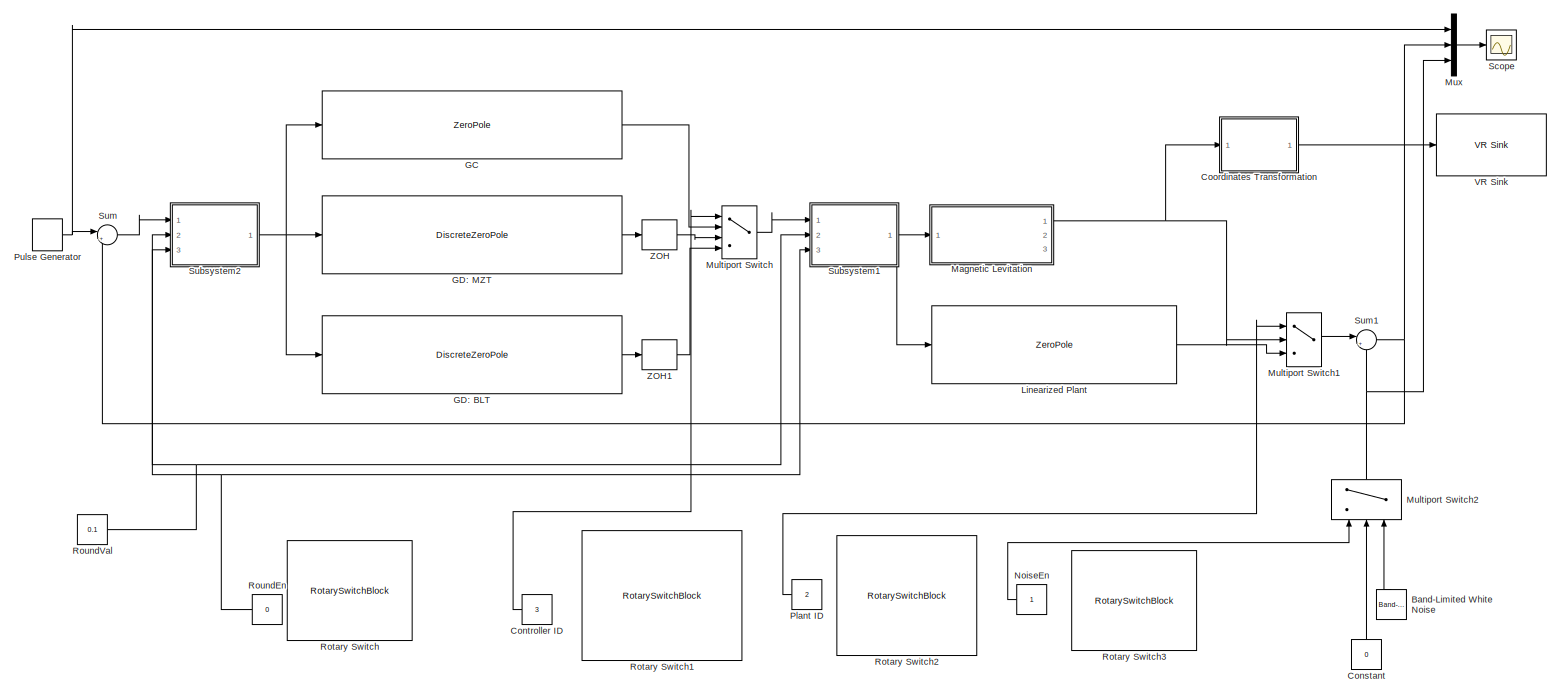
[diagram: root canvas - part 1/1, most of the canvas]
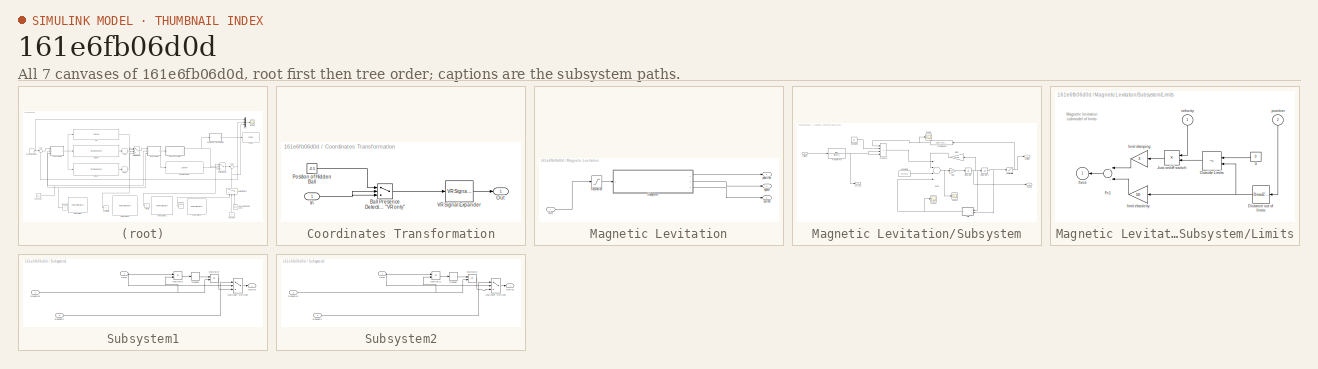
[diagram: thumbnail index - all 7 canvases of the model, root first then tree order]
MODEL slx_161e6fb06d0d
KIND model
CONFIG AbsTol = 1e-5
CONFIG EnableMultiTasking = off
CONFIG FixedStep = 1e-3
CONFIG MaxStep = 0.001
CONFIG MinStep = auto
CONFIG RelTol = 1e-3
CONFIG SampleTimeConstraint = Unconstrained
CONFIG Solver = ode5
CONFIG SolverName = ode5
CONFIG StartTime = 0.0
CONFIG StopTime = 5
WORKSPACE source: MATLAB code (in-file)
WORKSPACE Ts = 1e-3  (= 0.001)
BLOCK [Reference] Band-Limited White Noise  REF=simulink/Sources/Band-Limited
White Noise
  Ports = [0, 1]
  SourceBlock = simulink/Sources/Band-Limited\nWhite Noise
  SourceProductBaseCode = SL
  SourceProductName = Simulink
  SourceType = Band-Limited White Noise.
BLOCK [Constant] Constant
  Value = 0
BLOCK [Constant] Controller ID
  Value = 3
BLOCK [SubSystem] Coordinates Transformation
  Permissions = ReadOnly
  Ports = [1, 1]
  RequestExecContextInheritance = off
BLOCK [Switch] Coordinates Transformation/Ball Presence Detection Value > Threshold = Ball Not Present 1 for "VR only"
  SaturateOnIntegerOverflow = off
  Threshold = 1
BLOCK [Inport] Coordinates Transformation/In
  IconDisplay = Port number
BLOCK [Outport] Coordinates Transformation/Out
  IconDisplay = Port number
BLOCK [Constant] Coordinates Transformation/Position of Hidden Ball
  Value = -0.5
BLOCK [Reference] Coordinates Transformation/VR Signal Expander  REF=vrlib/VR Signal Expander
  Ports = [1, 1]
  SourceBlock = vrlib/VR Signal Expander
  SourceProductBaseCode = VR
  SourceProductName = Simulink 3D Animation
  SourceType = VR Signal Expander
BLOCK [ZeroPole] GC
  Gain = 19.0620
  Poles = [0, -10.2083]
  Zeros = [3.7887, -3.9791]
BLOCK [DiscreteZeroPole] GD: BLT
  Gain = 19.0620 * A
  Poles = [1, -C3]
  SampleTime = T
  Zeros = [-C1, -C2]
BLOCK [DiscreteZeroPole] GD: MZT
  Gain = K_M
  Poles = [1, exp(-10.2083*T)]
  SampleTime = T
  Zeros = [exp(3.7887*T), exp(-3.9791*T)]
BLOCK [ZeroPole] Linearized Plant
  Gain = 656.3
  Poles = [-250, -3.9791, +3.7887]
  Zeros = []
BLOCK [SubSystem] Magnetic Levitation
  Ports = [1, 3]
  RequestExecContextInheritance = off
BLOCK [Saturate] Magnetic Levitation/Saturation
  InputPortMap = u0
  LowerLimit = 0
  Ports = [1, 1]
  UpperLimit = 10
  ZeroCross = off
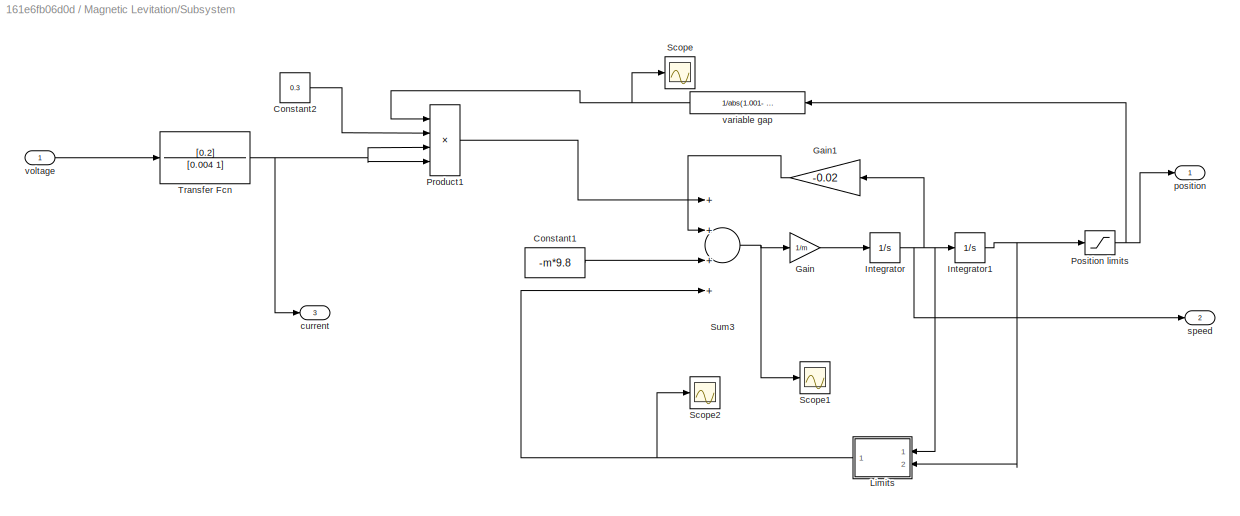
BLOCK [SubSystem] Magnetic Levitation/Subsystem
  Ports = [1, 3]
  RequestExecContextInheritance = off
BLOCK [Constant] Magnetic Levitation/Subsystem/Constant1
  Value = -m*9.8
BLOCK [Constant] Magnetic Levitation/Subsystem/Constant2
  Value = 0.3
BLOCK [Gain] Magnetic Levitation/Subsystem/Gain
  Gain = 1/m
  OutDataTypeStr = Inherit: Inherit via internal rule
  ParamDataTypeStr = Inherit: Inherit via internal rule
  SaturateOnIntegerOverflow = off
BLOCK [Gain] Magnetic Levitation/Subsystem/Gain1
  Gain = -0.02
  OutDataTypeStr = Inherit: Inherit via internal rule
  ParamDataTypeStr = Inherit: Inherit via internal rule
  SaturateOnIntegerOverflow = off
BLOCK [Integrator] Magnetic Levitation/Subsystem/Integrator
  Ports = [1, 1]
BLOCK [Integrator] Magnetic Levitation/Subsystem/Integrator1
  LimitOutput = on
  LowerSaturationLimit = 0
  Ports = [1, 1]
  UpperSaturationLimit = 1
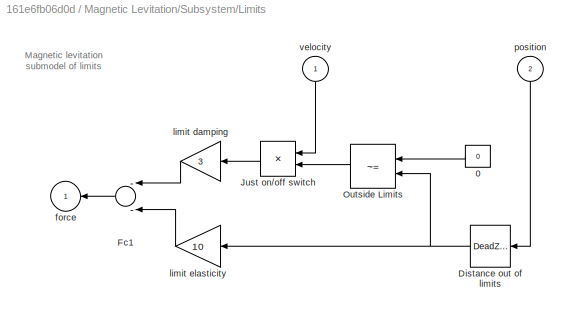
BLOCK [SubSystem] Magnetic Levitation/Subsystem/Limits
  Ports = [2, 1]
  RequestExecContextInheritance = off
  ShowPortLabels = none
BLOCK [Constant] Magnetic Levitation/Subsystem/Limits/0
  Value = 0
BLOCK [DeadZone] Magnetic Levitation/Subsystem/Limits/Distance out of limits
  LowerValue = 0.002
  UpperValue = 1
  ZeroCross = off
BLOCK [Sum] Magnetic Levitation/Subsystem/Limits/Fc1
  Inputs = --
  Ports = [2, 1]
BLOCK [Product] Magnetic Levitation/Subsystem/Limits/Just on//off switch 
  Ports = [2, 1]
  RndMeth = Floor
BLOCK [RelationalOperator] Magnetic Levitation/Subsystem/Limits/Outside Limits
  Operator = ~=
  Ports = [2, 1]
BLOCK [Outport] Magnetic Levitation/Subsystem/Limits/force
  IconDisplay = Port number
BLOCK [Gain] Magnetic Levitation/Subsystem/Limits/limit damping
  Gain = 3
BLOCK [Gain] Magnetic Levitation/Subsystem/Limits/limit elasticity
  Gain = 10
BLOCK [Inport] Magnetic Levitation/Subsystem/Limits/position
  IconDisplay = Port number
  Port = 2
BLOCK [Inport] Magnetic Levitation/Subsystem/Limits/velocity
  IconDisplay = Port number
BLOCK [Saturate] Magnetic Levitation/Subsystem/Position limits
  InputPortMap = u0
  LowerLimit = 0.001
  Ports = [1, 1]
  UpperLimit = 0.998
  ZeroCross = off
BLOCK [Product] Magnetic Levitation/Subsystem/Product1
  InputSameDT = off
  Inputs = 4
  OutDataTypeStr = Inherit: Inherit via internal rule
  Ports = [4, 1]
  RndMeth = Floor
  SaturateOnIntegerOverflow = off
BLOCK [Scope] Magnetic Levitation/Subsystem/Scope
  Floating = off
  NumInputPorts = 1
  Ports = [1]
  ScopeSpecificationString = Simulink.scopes.TimeScopeBlockCfg('CurrentConfiguration', extmgr.ConfigurationSet(extmgr.Configuration('Core','General UI',true),extmgr.Configuration('Core','Source UI',true),extmgr.Configuration('Sources','WiredSimulink',true,'DataLoggingVariableName','ScopeData1'),extmgr.Configuration('Visuals','Time Domain',true,'SerializedDisplays',{struct('MinYLimReal','-40.54054','MaxYLimReal','374.87487','Y...<+1381ch>
BLOCK [Scope] Magnetic Levitation/Subsystem/Scope1
  Floating = off
  NumInputPorts = 1
  Ports = [1]
  ScopeSpecificationString = Simulink.scopes.TimeScopeBlockCfg('CurrentConfiguration', extmgr.ConfigurationSet(extmgr.Configuration('Core','General UI',true),extmgr.Configuration('Core','Source UI',true),extmgr.Configuration('Sources','WiredSimulink',true,'DataLoggingVariableName','ScopeData2'),extmgr.Configuration('Visuals','Time Domain',true,'SerializedDisplays',{struct('MinYLimReal','-21376391083219120442781708779858395089...<+3841ch>
BLOCK [Scope] Magnetic Levitation/Subsystem/Scope2
  Floating = off
  NumInputPorts = 1
  Ports = [1]
  ScopeSpecificationString = Simulink.scopes.TimeScopeBlockCfg('CurrentConfiguration', extmgr.ConfigurationSet(extmgr.Configuration('Core','General UI',true),extmgr.Configuration('Core','Source UI',true),extmgr.Configuration('Sources','WiredSimulink',true,'DataLoggingVariableName','ScopeData3'),extmgr.Configuration('Visuals','Time Domain',true,'SerializedDisplays',{struct('MinYLimReal','-0.1107','MaxYLimReal','1.19629','YLabe...<+1363ch>
BLOCK [Sum] Magnetic Levitation/Subsystem/Sum3
  InputSameDT = off
  Inputs = ++++
  OutDataTypeStr = Inherit: Inherit via internal rule
  Ports = [4, 1]
  SaturateOnIntegerOverflow = off
BLOCK [TransferFcn] Magnetic Levitation/Subsystem/Transfer Fcn
  Denominator = [0.004 1]
  Numerator = [0.2]
BLOCK [Outport] Magnetic Levitation/Subsystem/current
  IconDisplay = Port number
  Port = 3
BLOCK [Outport] Magnetic Levitation/Subsystem/position 
  IconDisplay = Port number
BLOCK [Outport] Magnetic Levitation/Subsystem/speed
  IconDisplay = Port number
  Port = 2
BLOCK [Fcn] Magnetic Levitation/Subsystem/variable gap
  Expr = 1/abs(1.001- u)
BLOCK [Inport] Magnetic Levitation/Subsystem/voltage
  IconDisplay = Port number
BLOCK [Inport] Magnetic Levitation/Vin
  IconDisplay = Port number
BLOCK [Outport] Magnetic Levitation/current
  IconDisplay = Port number
  Port = 3
BLOCK [Outport] Magnetic Levitation/position
  IconDisplay = Port number
BLOCK [Outport] Magnetic Levitation/speed
  IconDisplay = Port number
  Port = 2
BLOCK [MultiPortSwitch] Multiport Switch
  InputSameDT = off
  Ports = [4, 1]
  SaturateOnIntegerOverflow = off
BLOCK [MultiPortSwitch] Multiport Switch1
  InputSameDT = off
  Inputs = 2
  Ports = [3, 1]
  SaturateOnIntegerOverflow = off
BLOCK [MultiPortSwitch] Multiport Switch2
  DataPortOrder = Zero-based contiguous
  InputSameDT = off
  Inputs = 2
  Ports = [3, 1]
  SaturateOnIntegerOverflow = off
  zeroidx = on
BLOCK [Mux] Mux
  DisplayOption = bar
  Inputs = 3
  Ports = [3, 1]
BLOCK [Constant] NoiseEn
BLOCK [Constant] Plant ID
  Value = 2
BLOCK [DiscretePulseGenerator] Pulse Generator
  Amplitude = yd
  Period = 10
  Ports = [0, 1]
  PulseType = Time based
  PulseWidth = 50
BLOCK [RotarySwitchBlock] Rotary Switch
  WebBlockId = 228
BLOCK [RotarySwitchBlock] Rotary Switch1
  WebBlockId = 212
BLOCK [RotarySwitchBlock] Rotary Switch2
  WebBlockId = 211
BLOCK [RotarySwitchBlock] Rotary Switch3
  WebBlockId = 257
BLOCK [Constant] RoundEn
  Value = 0
BLOCK [Constant] RoundVal
  Value = 0.1
BLOCK [Scope] Scope
  ExtModeUploadOption = log
  Floating = off
  NumInputPorts = 1
  Ports = [1]
  ScopeSpecificationString = Simulink.scopes.TimeScopeBlockCfg('CurrentConfiguration', extmgr.ConfigurationSet(extmgr.Configuration('Core','General UI',true),extmgr.Configuration('Core','Source UI',true),extmgr.Configuration('Sources','WiredSimulink',true,'DataLoggingSaveFormat','Structure','DataLoggingMaxPoints','250','SampleTime','0.02','DataLoggingLimitDataPoints',true,'DataLoggingDecimation','1'),extmgr.Configuration('Vis...<+2151ch>
BLOCK [SubSystem] Subsystem1
  Ports = [3, 1]
  RequestExecContextInheritance = off
BLOCK [Inport] Subsystem1/InVal
  IconDisplay = Port number
BLOCK [Product] Subsystem1/Multiply2
  InputSameDT = off
  Inputs = */
  OutDataTypeStr = Inherit: Inherit via internal rule
  Ports = [2, 1]
  RndMeth = Floor
  SaturateOnIntegerOverflow = off
BLOCK [Product] Subsystem1/Multiply3
  InputSameDT = off
  Inputs = **
  OutDataTypeStr = Inherit: Inherit via internal rule
  Ports = [2, 1]
  RndMeth = Floor
  SaturateOnIntegerOverflow = off
BLOCK [MultiPortSwitch] Subsystem1/Multiport Switch2
  DataPortOrder = Zero-based contiguous
  InputSameDT = off
  Inputs = 2
  Ports = [3, 1]
  SaturateOnIntegerOverflow = off
  zeroidx = on
BLOCK [Outport] Subsystem1/OutVal
  IconDisplay = Port number
BLOCK [Rounding] Subsystem1/Round2
  Operator = round
BLOCK [Inport] Subsystem1/RoundEn
  IconDisplay = Port number
  Port = 3
BLOCK [Inport] Subsystem1/RoundVal
  IconDisplay = Port number
  Port = 2
BLOCK [SubSystem] Subsystem2
  Ports = [3, 1]
  RequestExecContextInheritance = off
BLOCK [Inport] Subsystem2/InVal
  IconDisplay = Port number
BLOCK [Product] Subsystem2/Multiply2
  InputSameDT = off
  Inputs = */
  OutDataTypeStr = Inherit: Inherit via internal rule
  Ports = [2, 1]
  RndMeth = Floor
  SaturateOnIntegerOverflow = off
BLOCK [Product] Subsystem2/Multiply3
  InputSameDT = off
  Inputs = **
  OutDataTypeStr = Inherit: Inherit via internal rule
  Ports = [2, 1]
  RndMeth = Floor
  SaturateOnIntegerOverflow = off
BLOCK [MultiPortSwitch] Subsystem2/Multiport Switch2
  DataPortOrder = Zero-based contiguous
  InputSameDT = off
  Inputs = 2
  Ports = [3, 1]
  SaturateOnIntegerOverflow = off
  zeroidx = on
BLOCK [Outport] Subsystem2/OutVal
  IconDisplay = Port number
BLOCK [Rounding] Subsystem2/Round2
  Operator = round
BLOCK [Inport] Subsystem2/RoundEn
  IconDisplay = Port number
  Port = 3
BLOCK [Inport] Subsystem2/RoundVal
  IconDisplay = Port number
  Port = 2
BLOCK [Sum] Sum
  IconShape = round
  Inputs = |+-
  Ports = [2, 1]
BLOCK [Sum] Sum1
  IconShape = round
  InputSameDT = off
  Inputs = |++
  OutDataTypeStr = Inherit: Inherit via internal rule
  Ports = [2, 1]
  SaturateOnIntegerOverflow = off
BLOCK [Reference] VR Sink  REF=vrlib/VR Sink
  InstantiateOnLoad = on
  Ports = [1]
  SourceBlock = vrlib/VR Sink
  SourceProductBaseCode = VR
  SourceProductName = Simulink 3D Animation
  SourceType = Virtual Reality Sink
BLOCK [ZeroOrderHold] ZOH
  SampleTime = T
BLOCK [ZeroOrderHold] ZOH1
  SampleTime = T
ANNOTATION Magnetic Levitation/Subsystem/Limits: Magnetic levitation submodel of limits
LINE Band-Limited White Noise:1 -> Multiport Switch2:3
LINE Constant:1 -> Multiport Switch2:2
LINE Controller ID:1 -> Multiport Switch:1
LINE Coordinates Transformation/Ball Presence Detection Value > Threshold = Ball Not Present 1 for "VR only":1 -> Coordinates Transformation/VR Signal Expander:1
NET Coordinates Transformation/In:1 -> Coordinates Transformation/Ball Presence Detection Value > Threshold = Ball Not Present 1 for "VR only":2, Coordinates Transformation/Ball Presence Detection Value > Threshold = Ball Not Present 1 for "VR only":3
LINE Coordinates Transformation/Position of Hidden Ball:1 -> Coordinates Transformation/Ball Presence Detection Value > Threshold = Ball Not Present 1 for "VR only":1
LINE Coordinates Transformation/VR Signal Expander:1 -> Coordinates Transformation/Out:1
LINE Coordinates Transformation:1 -> VR Sink:1
LINE GC:1 -> Multiport Switch:2
LINE GD: BLT:1 -> ZOH1:1
LINE GD: MZT:1 -> ZOH:1
LINE Linearized Plant:1 -> Multiport Switch1:3
LINE Magnetic Levitation/Saturation:1 -> Magnetic Levitation/Subsystem:1
LINE Magnetic Levitation/Subsystem/Constant1:1 -> Magnetic Levitation/Subsystem/Sum3:3
LINE Magnetic Levitation/Subsystem/Constant2:1 -> Magnetic Levitation/Subsystem/Product1:2
LINE Magnetic Levitation/Subsystem/Gain1:1 -> Magnetic Levitation/Subsystem/Sum3:2
LINE Magnetic Levitation/Subsystem/Gain:1 -> Magnetic Levitation/Subsystem/Integrator:1
NET Magnetic Levitation/Subsystem/Integrator1:1 -> Magnetic Levitation/Subsystem/Limits:2, Magnetic Levitation/Subsystem/Position limits:1
NET Magnetic Levitation/Subsystem/Integrator:1 -> Magnetic Levitation/Subsystem/Gain1:1, Magnetic Levitation/Subsystem/Integrator1:1, Magnetic Levitation/Subsystem/Limits:1, Magnetic Levitation/Subsystem/speed:1
LINE Magnetic Levitation/Subsystem/Limits/0:1 -> Magnetic Levitation/Subsystem/Limits/Outside Limits:1
NET Magnetic Levitation/Subsystem/Limits/Distance out of limits:1 -> Magnetic Levitation/Subsystem/Limits/Outside Limits:2, Magnetic Levitation/Subsystem/Limits/limit elasticity:1
LINE Magnetic Levitation/Subsystem/Limits/Fc1:1 -> Magnetic Levitation/Subsystem/Limits/force:1
LINE Magnetic Levitation/Subsystem/Limits/Just on//off switch :1 -> Magnetic Levitation/Subsystem/Limits/limit damping:1
LINE Magnetic Levitation/Subsystem/Limits/Outside Limits:1 -> Magnetic Levitation/Subsystem/Limits/Just on//off switch :2
LINE Magnetic Levitation/Subsystem/Limits/limit damping:1 -> Magnetic Levitation/Subsystem/Limits/Fc1:1
LINE Magnetic Levitation/Subsystem/Limits/limit elasticity:1 -> Magnetic Levitation/Subsystem/Limits/Fc1:2
LINE Magnetic Levitation/Subsystem/Limits/position:1 -> Magnetic Levitation/Subsystem/Limits/Distance out of limits:1
LINE Magnetic Levitation/Subsystem/Limits/velocity:1 -> Magnetic Levitation/Subsystem/Limits/Just on//off switch :1
NET Magnetic Levitation/Subsystem/Limits:1 -> Magnetic Levitation/Subsystem/Scope2:1, Magnetic Levitation/Subsystem/Sum3:4
NET Magnetic Levitation/Subsystem/Position limits:1 -> Magnetic Levitation/Subsystem/position :1, Magnetic Levitation/Subsystem/variable gap:1
LINE Magnetic Levitation/Subsystem/Product1:1 -> Magnetic Levitation/Subsystem/Sum3:1
NET Magnetic Levitation/Subsystem/Sum3:1 -> Magnetic Levitation/Subsystem/Gain:1, Magnetic Levitation/Subsystem/Scope1:1
NET Magnetic Levitation/Subsystem/Transfer Fcn:1 -> Magnetic Levitation/Subsystem/Product1:3, Magnetic Levitation/Subsystem/Product1:4, Magnetic Levitation/Subsystem/current:1
NET Magnetic Levitation/Subsystem/variable gap:1 -> Magnetic Levitation/Subsystem/Product1:1, Magnetic Levitation/Subsystem/Scope:1
LINE Magnetic Levitation/Subsystem/voltage:1 -> Magnetic Levitation/Subsystem/Transfer Fcn:1
LINE Magnetic Levitation/Subsystem:1 -> Magnetic Levitation/position:1
LINE Magnetic Levitation/Subsystem:2 -> Magnetic Levitation/speed:1
LINE Magnetic Levitation/Subsystem:3 -> Magnetic Levitation/current:1
LINE Magnetic Levitation/Vin:1 -> Magnetic Levitation/Saturation:1
NET Magnetic Levitation:1 -> Coordinates Transformation:1, Multiport Switch1:2
LINE Multiport Switch1:1 -> Sum1:1
NET Multiport Switch2:1 -> Mux:3, Sum1:2
LINE Multiport Switch:1 -> Subsystem1:1
LINE Mux:1 -> Scope:1
LINE NoiseEn:1 -> Multiport Switch2:1
LINE Plant ID:1 -> Multiport Switch1:1
NET Pulse Generator:1 -> Mux:1, Sum:1
NET RoundEn:1 -> Subsystem1:3, Subsystem2:3
NET RoundVal:1 -> Subsystem1:2, Subsystem2:2
NET Subsystem1/InVal:1 -> Subsystem1/Multiply2:1, Subsystem1/Multiport Switch2:2
LINE Subsystem1/Multiply2:1 -> Subsystem1/Round2:1
LINE Subsystem1/Multiply3:1 -> Subsystem1/Multiport Switch2:3
LINE Subsystem1/Multiport Switch2:1 -> Subsystem1/OutVal:1
LINE Subsystem1/Round2:1 -> Subsystem1/Multiply3:1
LINE Subsystem1/RoundEn:1 -> Subsystem1/Multiport Switch2:1
NET Subsystem1/RoundVal:1 -> Subsystem1/Multiply2:2, Subsystem1/Multiply3:2
NET Subsystem1:1 -> Linearized Plant:1, Magnetic Levitation:1
NET Subsystem2/InVal:1 -> Subsystem2/Multiply2:1, Subsystem2/Multiport Switch2:2
LINE Subsystem2/Multiply2:1 -> Subsystem2/Round2:1
LINE Subsystem2/Multiply3:1 -> Subsystem2/Multiport Switch2:3
LINE Subsystem2/Multiport Switch2:1 -> Subsystem2/OutVal:1
LINE Subsystem2/Round2:1 -> Subsystem2/Multiply3:1
LINE Subsystem2/RoundEn:1 -> Subsystem2/Multiport Switch2:1
NET Subsystem2/RoundVal:1 -> Subsystem2/Multiply2:2, Subsystem2/Multiply3:2
NET Subsystem2:1 -> GC:1, GD: BLT:1, GD: MZT:1
NET Sum1:1 -> Mux:2, Sum:2
LINE Sum:1 -> Subsystem2:1
LINE ZOH1:1 -> Multiport Switch:4
LINE ZOH:1 -> Multiport Switch:3
note: NET lines group one-source signal fan-out (src -> all destinations, sorted); 1:1 wires keep LINE
